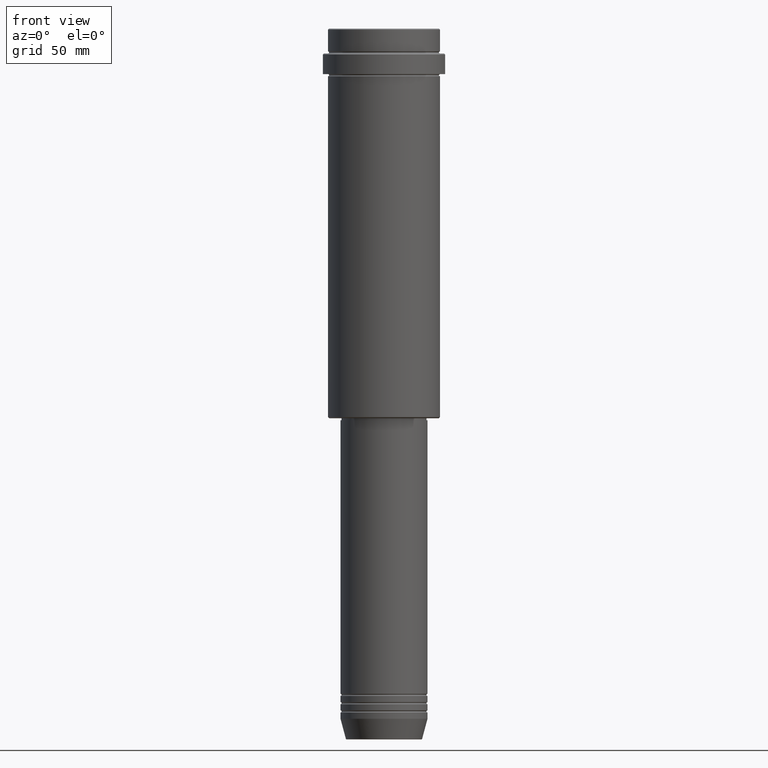
[diagram: clean part render]
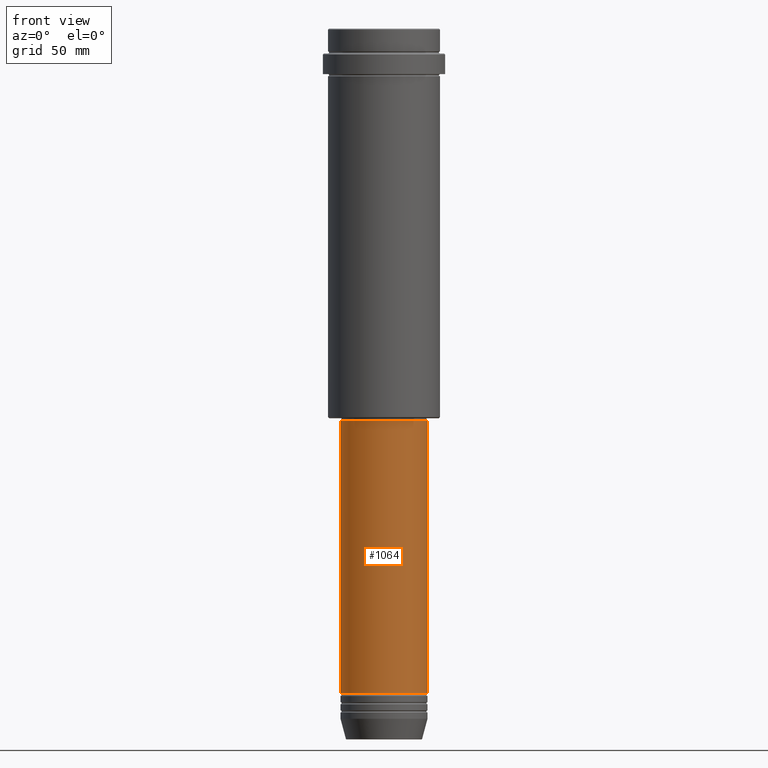
[diagram: same view with one face highlighted and labeled with its STEP entity id]
A machine part, front view. The second image highlights one B-rep face of the part: STEP entity #1064.
In plain terms, the highlighted cylindrical surface (partial cylindrical patch) has radius 21 mm, axis along (-0, -0, 1).
Its self-contained STEP definition (entity closure, byte-faithful):
#21 = CARTESIAN_POINT ( 'NONE',  ( 21.00000000000000000, 0.000000000000000000, -320.9999999999998863 ) ) ;
#22 = EDGE_LOOP ( 'NONE', ( #1213, #727, #605, #1130 ) ) ;
#35 = DIRECTION ( 'NONE',  ( -0.000000000000000000, -0.000000000000000000, 1.000000000000000000 ) ) ;
#47 = CARTESIAN_POINT ( 'NONE',  ( 0.000000000000000000, 0.000000000000000000, -320.9999999999998863 ) ) ;
#61 = EDGE_CURVE ( 'NONE', #869, #1184, #901, .T. ) ;
#132 = CARTESIAN_POINT ( 'NONE',  ( 21.00000000000000000, 0.000000000000000000, 0.000000000000000000 ) ) ;
#134 = DIRECTION ( 'NONE',  ( -0.000000000000000000, -0.000000000000000000, 1.000000000000000000 ) ) ;
#150 = CARTESIAN_POINT ( 'NONE',  ( -21.00000000000000000, 2.571758278209441661E-15, -320.9999999999998863 ) ) ;
#167 = DIRECTION ( 'NONE',  ( -0.000000000000000000, -0.000000000000000000, 1.000000000000000000 ) ) ;
#172 = VERTEX_POINT ( 'NONE', #150 ) ;
#201 = VECTOR ( 'NONE', #35, 1000.000000000000000 ) ;
#203 = EDGE_CURVE ( 'NONE', #172, #869, #506, .T. ) ;
#337 = DIRECTION ( 'NONE',  ( 1.000000000000000000, 0.000000000000000000, 0.000000000000000000 ) ) ;
#506 = CIRCLE ( 'NONE', #672, 21.00000000000000000 ) ;
#605 = ORIENTED_EDGE ( 'NONE', *, *, #61, .T. ) ;
#624 = DIRECTION ( 'NONE',  ( 1.000000000000000000, 0.000000000000000000, 0.000000000000000000 ) ) ;
#632 = VECTOR ( 'NONE', #702, 1000.000000000000000 ) ;
#634 = DIRECTION ( 'NONE',  ( 1.000000000000000000, 0.000000000000000000, 0.000000000000000000 ) ) ;
#639 = CARTESIAN_POINT ( 'NONE',  ( 21.00000000000000000, 0.000000000000000000, -188.9999999999999432 ) ) ;
#672 = AXIS2_PLACEMENT_3D ( 'NONE', #47, #167, #624 ) ;
#684 = LINE ( 'NONE', #690, #632 ) ;
#690 = CARTESIAN_POINT ( 'NONE',  ( -21.00000000000000000, 2.571758278209441661E-15, 0.000000000000000000 ) ) ;
#702 = DIRECTION ( 'NONE',  ( -0.000000000000000000, -0.000000000000000000, 1.000000000000000000 ) ) ;
#727 = ORIENTED_EDGE ( 'NONE', *, *, #203, .T. ) ;
#790 = FACE_OUTER_BOUND ( 'NONE', #22, .T. ) ;
#811 = EDGE_CURVE ( 'NONE', #1313, #1184, #1284, .T. ) ;
#851 = AXIS2_PLACEMENT_3D ( 'NONE', #1117, #134, #634 ) ;
#869 = VERTEX_POINT ( 'NONE', #21 ) ;
#901 = LINE ( 'NONE', #132, #201 ) ;
#966 = CARTESIAN_POINT ( 'NONE',  ( 0.000000000000000000, 0.000000000000000000, -188.9999999999999432 ) ) ;
#1013 = EDGE_CURVE ( 'NONE', #172, #1313, #684, .T. ) ;
#1064 = ADVANCED_FACE ( 'NONE', ( #790 ), #1228, .T. ) ;
#1072 = CARTESIAN_POINT ( 'NONE',  ( -21.00000000000000000, 2.571758278209441661E-15, -188.9999999999999432 ) ) ;
#1117 = CARTESIAN_POINT ( 'NONE',  ( 0.000000000000000000, 0.000000000000000000, 0.000000000000000000 ) ) ;
#1121 = AXIS2_PLACEMENT_3D ( 'NONE', #966, #1210, #337 ) ;
#1130 = ORIENTED_EDGE ( 'NONE', *, *, #811, .F. ) ;
#1184 = VERTEX_POINT ( 'NONE', #639 ) ;
#1210 = DIRECTION ( 'NONE',  ( -0.000000000000000000, -0.000000000000000000, 1.000000000000000000 ) ) ;
#1213 = ORIENTED_EDGE ( 'NONE', *, *, #1013, .F. ) ;
#1228 = CYLINDRICAL_SURFACE ( 'NONE', #851, 21.00000000000000000 ) ;
#1284 = CIRCLE ( 'NONE', #1121, 21.00000000000000000 ) ;
#1313 = VERTEX_POINT ( 'NONE', #1072 ) ;